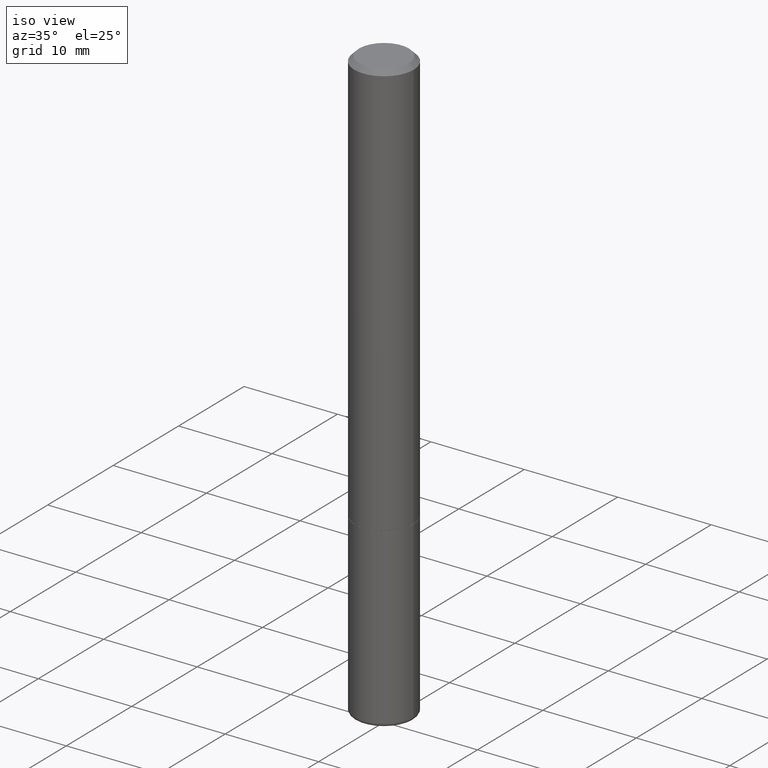
[diagram: clean part render]
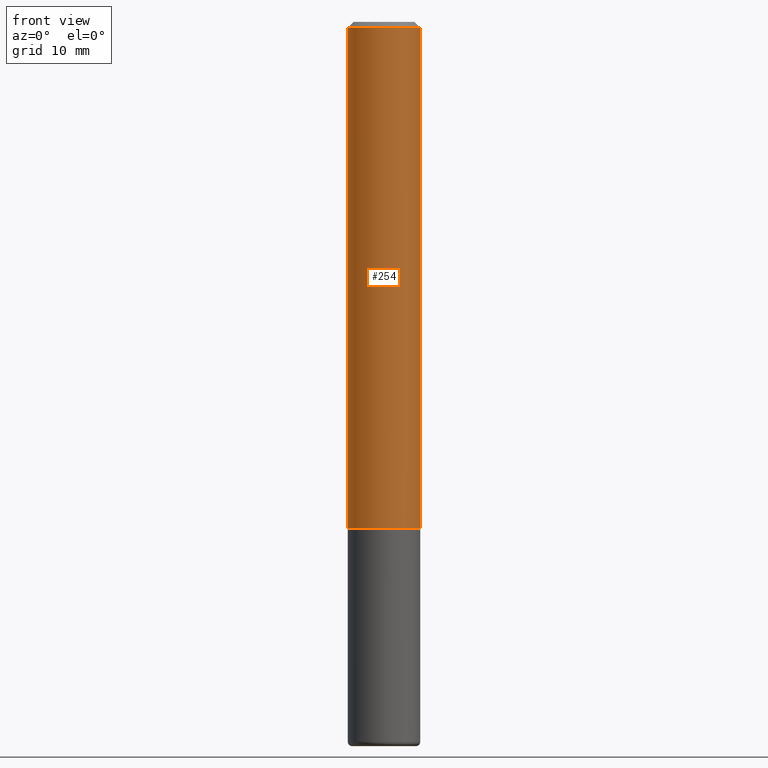
[diagram: tour spotlight — one face highlighted and labeled with its STEP entity id]
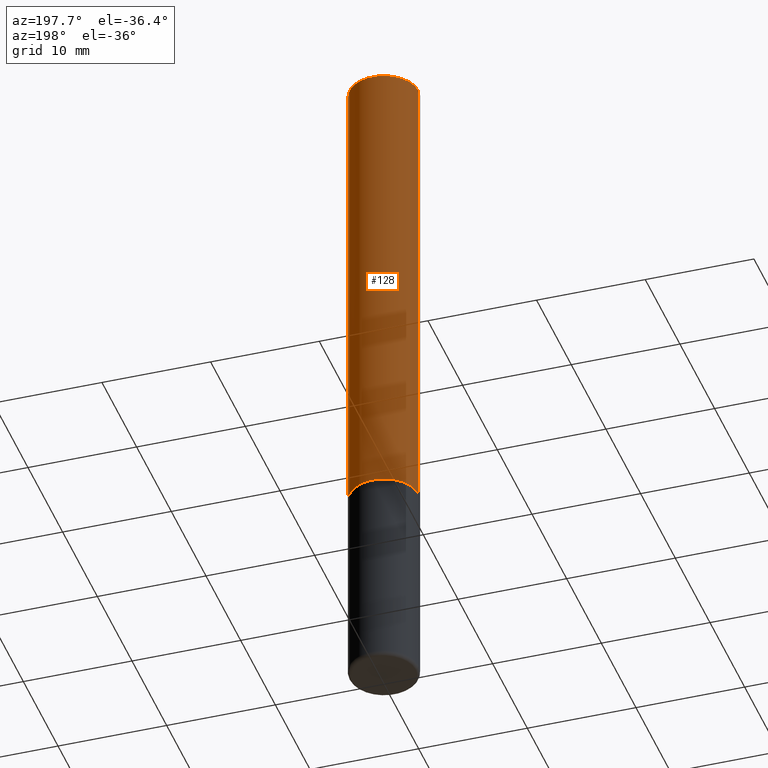
[diagram: tour spotlight — one face highlighted and labeled with its STEP entity id]
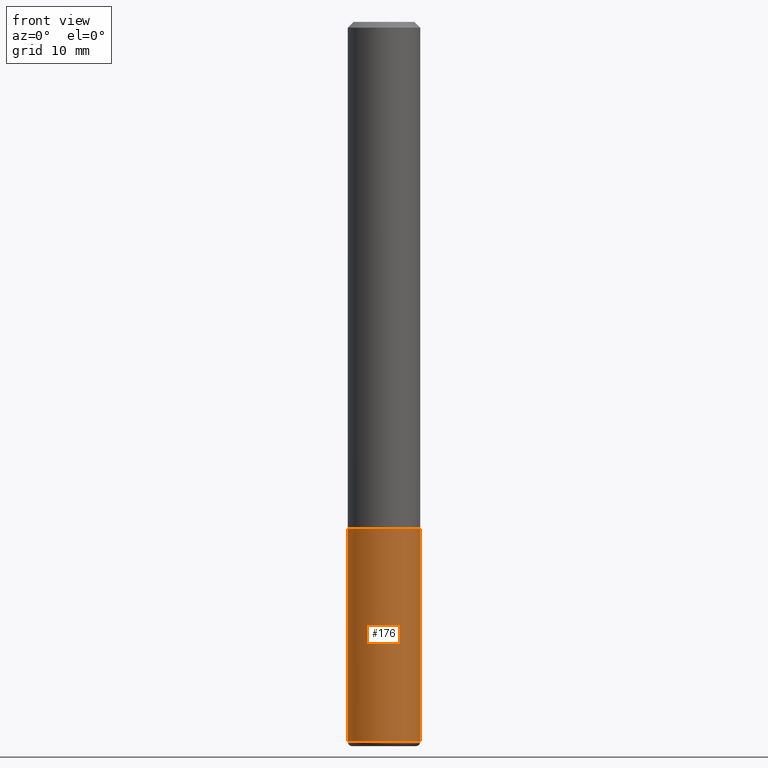
[diagram: tour spotlight — one face highlighted and labeled with its STEP entity id]
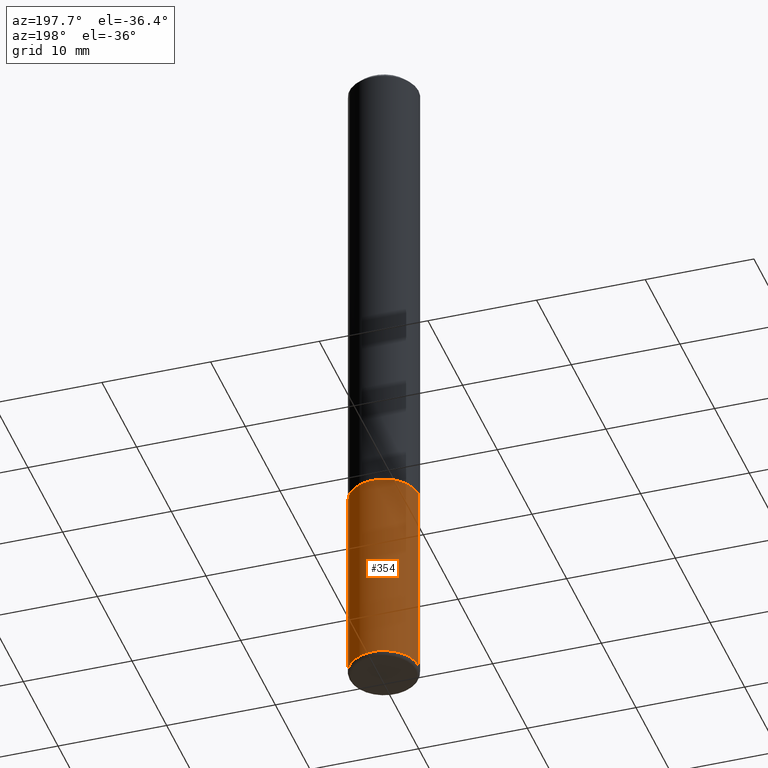
[diagram: tour spotlight — one face highlighted and labeled with its STEP entity id]
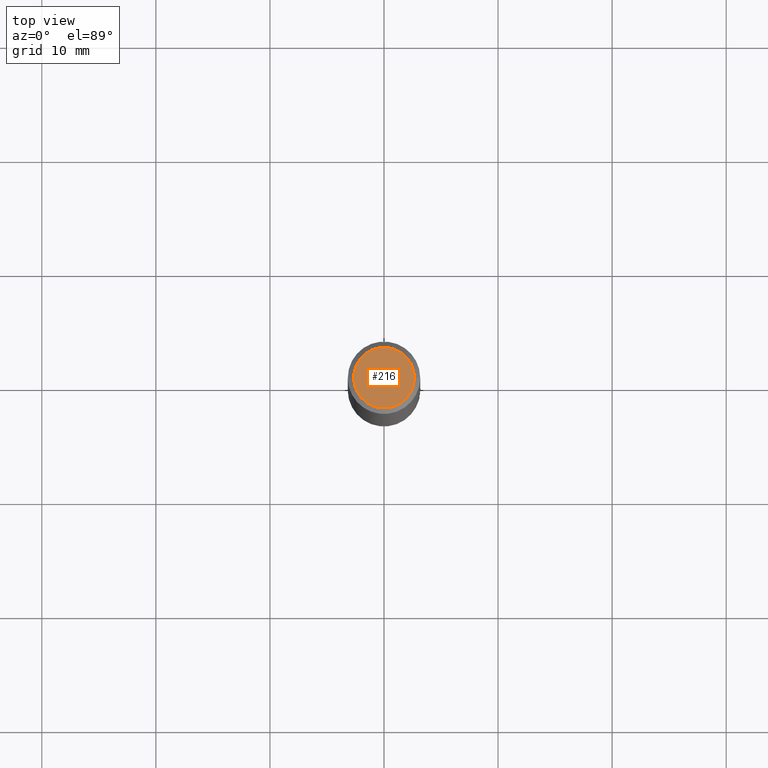
[diagram: tour spotlight — one face highlighted and labeled with its STEP entity id]
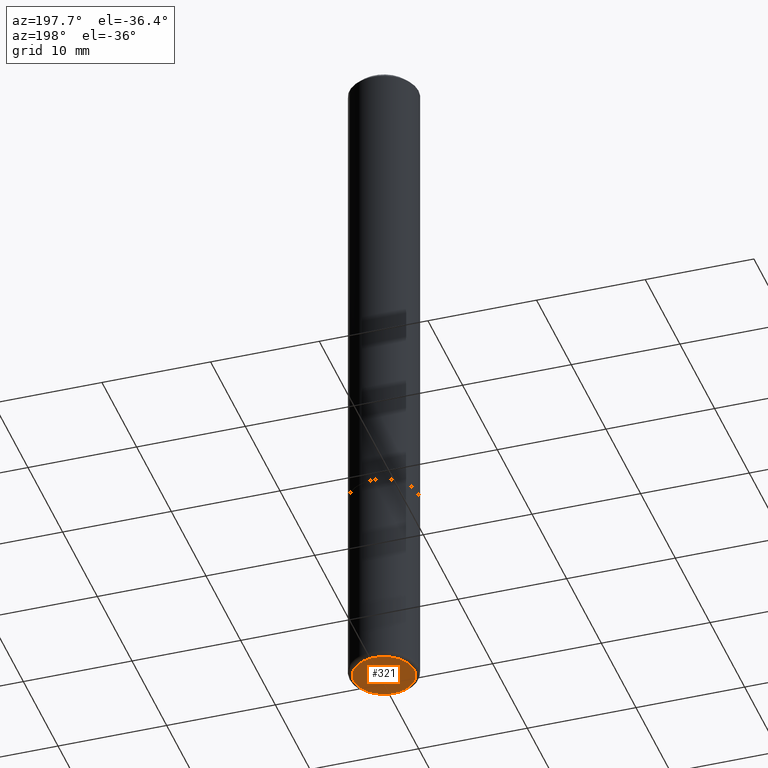
[diagram: tour spotlight — one face highlighted and labeled with its STEP entity id]
A machine part: a face-by-face anatomy tour. The part has 14 B-rep faces; the first image is the clean iso view, then the 6 largest visible faces are spotlighted one at a time (largest first), each with its STEP entity span.

Face 1 — front view, entity #254. In plain terms, the highlighted cylindrical surface (edge-blend (fillet) strip) has radius 3.175 mm, axis along (-0, 0, 1).
Definition (entity closure, byte-faithful):
#23 = VERTEX_POINT ( 'NONE', #296 ) ;
#26 = ORIENTED_EDGE ( 'NONE', *, *, #399, .F. ) ;
#41 = EDGE_CURVE ( 'NONE', #92, #195, #110, .T. ) ;
#52 = AXIS2_PLACEMENT_3D ( 'NONE', #401, #242, #312 ) ;
#62 = VERTEX_POINT ( 'NONE', #261 ) ;
#76 = CARTESIAN_POINT ( 'NONE',  ( 0.000000000000000000, 0.000000000000000000, 0.000000000000000000 ) ) ;
#81 = CARTESIAN_POINT ( 'NONE',  ( 0.1250000000000000555, -8.728703347107838319E-16, 6.095220969744923244E-30 ) ) ;
#89 = EDGE_LOOP ( 'NONE', ( #129, #107, #191, #26 ) ) ;
#92 = VERTEX_POINT ( 'NONE', #163 ) ;
#105 = CIRCLE ( 'NONE', #52, 0.1249999999999999584 ) ;
#107 = ORIENTED_EDGE ( 'NONE', *, *, #41, .T. ) ;
#110 = CIRCLE ( 'NONE', #190, 0.1250000000000001943 ) ;
#112 = CARTESIAN_POINT ( 'NONE',  ( 0.1250000000000001943, -6.979471196347446580E-15, -1.749000000000000110 ) ) ;
#114 = LINE ( 'NONE', #264, #130 ) ;
#129 = ORIENTED_EDGE ( 'NONE', *, *, #223, .F. ) ;
#130 = VECTOR ( 'NONE', #233, 39.37007874015748143 ) ;
#136 = AXIS2_PLACEMENT_3D ( 'NONE', #76, #299, #240 ) ;
#163 = CARTESIAN_POINT ( 'NONE',  ( -0.1250000000000001943, -2.200036824506633304E-15, -1.749000000000000110 ) ) ;
#168 = DIRECTION ( 'NONE',  ( 1.000000000000000000, -6.982962677686267499E-15, 0.000000000000000000 ) ) ;
#189 = EDGE_CURVE ( 'NONE', #195, #23, #397, .T. ) ;
#190 = AXIS2_PLACEMENT_3D ( 'NONE', #325, #390, #168 ) ;
#191 = ORIENTED_EDGE ( 'NONE', *, *, #189, .T. ) ;
#195 = VERTEX_POINT ( 'NONE', #112 ) ;
#223 = EDGE_CURVE ( 'NONE', #92, #62, #114, .T. ) ;
#233 = DIRECTION ( 'NONE',  ( -2.445468806185136877E-29, 3.491481338843145188E-15, 1.000000000000000000 ) ) ;
#240 = DIRECTION ( 'NONE',  ( 1.000000000000000000, -6.982962677686267499E-15, 4.876176775795936353E-29 ) ) ;
#242 = DIRECTION ( 'NONE',  ( -2.445468806185136597E-29, 3.491481338843145583E-15, 1.000000000000000000 ) ) ;
#254 = ADVANCED_FACE ( 'NONE', ( #334 ), #332, .T. ) ;
#261 = CARTESIAN_POINT ( 'NONE',  ( -0.1249999999999999584, 8.030407079339200406E-16, -0.02000000000000006287 ) ) ;
#264 = CARTESIAN_POINT ( 'NONE',  ( -0.1250000000000000555, 8.881784197001256268E-16, -6.148668862818635730E-30 ) ) ;
#296 = CARTESIAN_POINT ( 'NONE',  ( 0.1249999999999999584, -9.273918764983043491E-16, -0.02000000000000006287 ) ) ;
#299 = DIRECTION ( 'NONE',  ( -2.445468806185136597E-29, 3.491481338843145583E-15, 1.000000000000000000 ) ) ;
#312 = DIRECTION ( 'NONE',  ( 1.000000000000000000, -6.982962677686267499E-15, 0.000000000000000000 ) ) ;
#325 = CARTESIAN_POINT ( 'NONE',  ( 4.277124942017804562E-29, -6.106600861636661664E-15, -1.749000000000000110 ) ) ;
#332 = CYLINDRICAL_SURFACE ( 'NONE', #136, 0.1250000000000000555 ) ;
#334 = FACE_OUTER_BOUND ( 'NONE', #89, .T. ) ;
#370 = DIRECTION ( 'NONE',  ( -2.445468806185136877E-29, 3.491481338843145188E-15, 1.000000000000000000 ) ) ;
#390 = DIRECTION ( 'NONE',  ( -2.445468806185136597E-29, 3.491481338843145583E-15, 1.000000000000000000 ) ) ;
#391 = VECTOR ( 'NONE', #370, 39.37007874015748143 ) ;
#397 = LINE ( 'NONE', #81, #391 ) ;
#399 = EDGE_CURVE ( 'NONE', #62, #23, #105, .T. ) ;
#401 = CARTESIAN_POINT ( 'NONE',  ( 4.890937612370288923E-31, -6.982962677686312563E-17, -0.02000000000000006287 ) ) ;

Face 2 — auxiliary view, entity #128. In plain terms, the highlighted cylindrical surface (edge-blend (fillet) strip) has radius 3.175 mm, axis along (-0, 0, 1).
Definition (entity closure, byte-faithful):
#23 = VERTEX_POINT ( 'NONE', #296 ) ;
#62 = VERTEX_POINT ( 'NONE', #261 ) ;
#81 = CARTESIAN_POINT ( 'NONE',  ( 0.1250000000000000555, -8.728703347107838319E-16, 6.095220969744923244E-30 ) ) ;
#83 = EDGE_CURVE ( 'NONE', #195, #92, #88, .T. ) ;
#88 = CIRCLE ( 'NONE', #366, 0.1250000000000001943 ) ;
#92 = VERTEX_POINT ( 'NONE', #163 ) ;
#109 = DIRECTION ( 'NONE',  ( 1.000000000000000000, -6.982962677686267499E-15, 0.000000000000000000 ) ) ;
#112 = CARTESIAN_POINT ( 'NONE',  ( 0.1250000000000001943, -6.979471196347446580E-15, -1.749000000000000110 ) ) ;
#114 = LINE ( 'NONE', #264, #130 ) ;
#128 = ADVANCED_FACE ( 'NONE', ( #194 ), #320, .T. ) ;
#130 = VECTOR ( 'NONE', #233, 39.37007874015748143 ) ;
#134 = DIRECTION ( 'NONE',  ( -2.445468806185136597E-29, 3.491481338843145583E-15, 1.000000000000000000 ) ) ;
#141 = AXIS2_PLACEMENT_3D ( 'NONE', #235, #364, #109 ) ;
#163 = CARTESIAN_POINT ( 'NONE',  ( -0.1250000000000001943, -2.200036824506633304E-15, -1.749000000000000110 ) ) ;
#167 = CARTESIAN_POINT ( 'NONE',  ( 0.000000000000000000, 0.000000000000000000, 0.000000000000000000 ) ) ;
#189 = EDGE_CURVE ( 'NONE', #195, #23, #397, .T. ) ;
#193 = CARTESIAN_POINT ( 'NONE',  ( 4.277124942017804562E-29, -6.106600861636661664E-15, -1.749000000000000110 ) ) ;
#194 = FACE_OUTER_BOUND ( 'NONE', #307, .T. ) ;
#195 = VERTEX_POINT ( 'NONE', #112 ) ;
#210 = ORIENTED_EDGE ( 'NONE', *, *, #83, .T. ) ;
#211 = CIRCLE ( 'NONE', #141, 0.1249999999999999584 ) ;
#221 = DIRECTION ( 'NONE',  ( 1.000000000000000000, -6.982962677686267499E-15, 0.000000000000000000 ) ) ;
#223 = EDGE_CURVE ( 'NONE', #92, #62, #114, .T. ) ;
#232 = ORIENTED_EDGE ( 'NONE', *, *, #238, .F. ) ;
#233 = DIRECTION ( 'NONE',  ( -2.445468806185136877E-29, 3.491481338843145188E-15, 1.000000000000000000 ) ) ;
#235 = CARTESIAN_POINT ( 'NONE',  ( 4.890937612370288923E-31, -6.982962677686312563E-17, -0.02000000000000006287 ) ) ;
#238 = EDGE_CURVE ( 'NONE', #23, #62, #211, .T. ) ;
#248 = ORIENTED_EDGE ( 'NONE', *, *, #189, .F. ) ;
#260 = DIRECTION ( 'NONE',  ( 1.000000000000000000, -6.982962677686267499E-15, 4.876176775795936353E-29 ) ) ;
#261 = CARTESIAN_POINT ( 'NONE',  ( -0.1249999999999999584, 8.030407079339200406E-16, -0.02000000000000006287 ) ) ;
#264 = CARTESIAN_POINT ( 'NONE',  ( -0.1250000000000000555, 8.881784197001256268E-16, -6.148668862818635730E-30 ) ) ;
#278 = AXIS2_PLACEMENT_3D ( 'NONE', #167, #134, #260 ) ;
#296 = CARTESIAN_POINT ( 'NONE',  ( 0.1249999999999999584, -9.273918764983043491E-16, -0.02000000000000006287 ) ) ;
#307 = EDGE_LOOP ( 'NONE', ( #210, #380, #232, #248 ) ) ;
#320 = CYLINDRICAL_SURFACE ( 'NONE', #278, 0.1250000000000000555 ) ;
#322 = DIRECTION ( 'NONE',  ( -2.445468806185136597E-29, 3.491481338843145583E-15, 1.000000000000000000 ) ) ;
#364 = DIRECTION ( 'NONE',  ( -2.445468806185136597E-29, 3.491481338843145583E-15, 1.000000000000000000 ) ) ;
#366 = AXIS2_PLACEMENT_3D ( 'NONE', #193, #322, #221 ) ;
#370 = DIRECTION ( 'NONE',  ( -2.445468806185136877E-29, 3.491481338843145188E-15, 1.000000000000000000 ) ) ;
#380 = ORIENTED_EDGE ( 'NONE', *, *, #223, .T. ) ;
#391 = VECTOR ( 'NONE', #370, 39.37007874015748143 ) ;
#397 = LINE ( 'NONE', #81, #391 ) ;

Face 3 — front view, entity #176. In plain terms, the highlighted cylindrical surface (edge-blend (fillet) strip) has radius 3.175 mm, axis along (-0, 0, 1).
Definition (entity closure, byte-faithful):
#11 = EDGE_CURVE ( 'NONE', #213, #51, #28, .T. ) ;
#14 = DIRECTION ( 'NONE',  ( 1.000000000000000000, -6.982962677686266711E-15, 4.876176775795935793E-29 ) ) ;
#15 = DIRECTION ( 'NONE',  ( 1.000000000000000000, -6.982962677686270655E-15, 0.000000000000000000 ) ) ;
#28 = LINE ( 'NONE', #137, #206 ) ;
#44 = DIRECTION ( 'NONE',  ( -2.445468806185136597E-29, 3.491481338843145583E-15, 1.000000000000000000 ) ) ;
#45 = CARTESIAN_POINT ( 'NONE',  ( 4.279570410823989044E-29, -6.110092342975505460E-15, -1.750000000000000222 ) ) ;
#50 = CIRCLE ( 'NONE', #301, 0.1250000000000000000 ) ;
#51 = VERTEX_POINT ( 'NONE', #387 ) ;
#57 = VERTEX_POINT ( 'NONE', #135 ) ;
#70 = ORIENTED_EDGE ( 'NONE', *, *, #204, .T. ) ;
#74 = DIRECTION ( 'NONE',  ( 1.000000000000000000, -6.982962677686262766E-15, 0.000000000000000000 ) ) ;
#97 = AXIS2_PLACEMENT_3D ( 'NONE', #300, #44, #14 ) ;
#108 = DIRECTION ( 'NONE',  ( -2.445468806185136597E-29, 3.491481338843145583E-15, 1.000000000000000000 ) ) ;
#118 = EDGE_LOOP ( 'NONE', ( #127, #70, #208, #309 ) ) ;
#121 = CARTESIAN_POINT ( 'NONE',  ( -0.1250000000000000555, -7.788152707325091448E-15, -2.484999999999999876 ) ) ;
#127 = ORIENTED_EDGE ( 'NONE', *, *, #359, .F. ) ;
#135 = CARTESIAN_POINT ( 'NONE',  ( -0.1250000000000000000, -6.505033315300235838E-15, -1.750000000000000222 ) ) ;
#137 = CARTESIAN_POINT ( 'NONE',  ( 0.1250000000000000000, -8.728703347107833388E-16, 6.095220969744919741E-30 ) ) ;
#140 = CARTESIAN_POINT ( 'NONE',  ( 0.1250000000000000555, -9.549201461736000019E-15, -2.484999999999999876 ) ) ;
#176 = ADVANCED_FACE ( 'NONE', ( #335 ), #340, .T. ) ;
#178 = DIRECTION ( 'NONE',  ( -2.445468806185136597E-29, 3.491481338843145583E-15, 1.000000000000000000 ) ) ;
#182 = LINE ( 'NONE', #243, #402 ) ;
#200 = CIRCLE ( 'NONE', #255, 0.1250000000000000000 ) ;
#204 = EDGE_CURVE ( 'NONE', #343, #213, #200, .T. ) ;
#206 = VECTOR ( 'NONE', #415, 39.37007874015748143 ) ;
#208 = ORIENTED_EDGE ( 'NONE', *, *, #11, .T. ) ;
#213 = VERTEX_POINT ( 'NONE', #140 ) ;
#243 = CARTESIAN_POINT ( 'NONE',  ( -0.1250000000000000000, 8.881784197001252323E-16, -6.148668862818632227E-30 ) ) ;
#255 = AXIS2_PLACEMENT_3D ( 'NONE', #297, #178, #15 ) ;
#272 = DIRECTION ( 'NONE',  ( -2.445468806185136877E-29, 3.491481338843145188E-15, 1.000000000000000000 ) ) ;
#276 = EDGE_CURVE ( 'NONE', #57, #51, #50, .T. ) ;
#297 = CARTESIAN_POINT ( 'NONE',  ( 6.076989983370064174E-29, -8.676331127025216680E-15, -2.484999999999999876 ) ) ;
#300 = CARTESIAN_POINT ( 'NONE',  ( 0.000000000000000000, 0.000000000000000000, 0.000000000000000000 ) ) ;
#301 = AXIS2_PLACEMENT_3D ( 'NONE', #45, #108, #74 ) ;
#309 = ORIENTED_EDGE ( 'NONE', *, *, #276, .F. ) ;
#335 = FACE_OUTER_BOUND ( 'NONE', #118, .T. ) ;
#340 = CYLINDRICAL_SURFACE ( 'NONE', #97, 0.1250000000000000000 ) ;
#343 = VERTEX_POINT ( 'NONE', #121 ) ;
#359 = EDGE_CURVE ( 'NONE', #343, #57, #182, .T. ) ;
#387 = CARTESIAN_POINT ( 'NONE',  ( 0.1250000000000000000, -6.982962677686288010E-15, -1.750000000000000222 ) ) ;
#402 = VECTOR ( 'NONE', #272, 39.37007874015748143 ) ;
#415 = DIRECTION ( 'NONE',  ( -2.445468806185136877E-29, 3.491481338843145188E-15, 1.000000000000000000 ) ) ;

Face 4 — auxiliary view, entity #354. In plain terms, the highlighted cylindrical surface (edge-blend (fillet) strip) has radius 3.175 mm, axis along (-0, 0, 1).
Definition (entity closure, byte-faithful):
#11 = EDGE_CURVE ( 'NONE', #213, #51, #28, .T. ) ;
#17 = EDGE_CURVE ( 'NONE', #51, #57, #236, .T. ) ;
#24 = AXIS2_PLACEMENT_3D ( 'NONE', #35, #293, #66 ) ;
#28 = LINE ( 'NONE', #137, #206 ) ;
#35 = CARTESIAN_POINT ( 'NONE',  ( 4.279570410823989044E-29, -6.110092342975505460E-15, -1.750000000000000222 ) ) ;
#51 = VERTEX_POINT ( 'NONE', #387 ) ;
#57 = VERTEX_POINT ( 'NONE', #135 ) ;
#66 = DIRECTION ( 'NONE',  ( 1.000000000000000000, -6.982962677686262766E-15, 0.000000000000000000 ) ) ;
#68 = CIRCLE ( 'NONE', #373, 0.1250000000000000000 ) ;
#121 = CARTESIAN_POINT ( 'NONE',  ( -0.1250000000000000555, -7.788152707325091448E-15, -2.484999999999999876 ) ) ;
#135 = CARTESIAN_POINT ( 'NONE',  ( -0.1250000000000000000, -6.505033315300235838E-15, -1.750000000000000222 ) ) ;
#137 = CARTESIAN_POINT ( 'NONE',  ( 0.1250000000000000000, -8.728703347107833388E-16, 6.095220969744919741E-30 ) ) ;
#140 = CARTESIAN_POINT ( 'NONE',  ( 0.1250000000000000555, -9.549201461736000019E-15, -2.484999999999999876 ) ) ;
#144 = DIRECTION ( 'NONE',  ( 1.000000000000000000, -6.982962677686266711E-15, 4.876176775795935793E-29 ) ) ;
#177 = DIRECTION ( 'NONE',  ( -2.445468806185136597E-29, 3.491481338843145583E-15, 1.000000000000000000 ) ) ;
#179 = EDGE_LOOP ( 'NONE', ( #244, #280, #348, #406 ) ) ;
#182 = LINE ( 'NONE', #243, #402 ) ;
#205 = CARTESIAN_POINT ( 'NONE',  ( 6.076989983370064174E-29, -8.676331127025216680E-15, -2.484999999999999876 ) ) ;
#206 = VECTOR ( 'NONE', #415, 39.37007874015748143 ) ;
#213 = VERTEX_POINT ( 'NONE', #140 ) ;
#236 = CIRCLE ( 'NONE', #24, 0.1250000000000000000 ) ;
#243 = CARTESIAN_POINT ( 'NONE',  ( -0.1250000000000000000, 8.881784197001252323E-16, -6.148668862818632227E-30 ) ) ;
#244 = ORIENTED_EDGE ( 'NONE', *, *, #298, .T. ) ;
#270 = AXIS2_PLACEMENT_3D ( 'NONE', #375, #342, #144 ) ;
#272 = DIRECTION ( 'NONE',  ( -2.445468806185136877E-29, 3.491481338843145188E-15, 1.000000000000000000 ) ) ;
#280 = ORIENTED_EDGE ( 'NONE', *, *, #359, .T. ) ;
#293 = DIRECTION ( 'NONE',  ( -2.445468806185136597E-29, 3.491481338843145583E-15, 1.000000000000000000 ) ) ;
#298 = EDGE_CURVE ( 'NONE', #213, #343, #68, .T. ) ;
#303 = DIRECTION ( 'NONE',  ( 1.000000000000000000, -6.982962677686270655E-15, 0.000000000000000000 ) ) ;
#342 = DIRECTION ( 'NONE',  ( -2.445468806185136597E-29, 3.491481338843145583E-15, 1.000000000000000000 ) ) ;
#343 = VERTEX_POINT ( 'NONE', #121 ) ;
#347 = CYLINDRICAL_SURFACE ( 'NONE', #270, 0.1250000000000000000 ) ;
#348 = ORIENTED_EDGE ( 'NONE', *, *, #17, .F. ) ;
#354 = ADVANCED_FACE ( 'NONE', ( #377 ), #347, .T. ) ;
#359 = EDGE_CURVE ( 'NONE', #343, #57, #182, .T. ) ;
#373 = AXIS2_PLACEMENT_3D ( 'NONE', #205, #177, #303 ) ;
#375 = CARTESIAN_POINT ( 'NONE',  ( 0.000000000000000000, 0.000000000000000000, 0.000000000000000000 ) ) ;
#377 = FACE_OUTER_BOUND ( 'NONE', #179, .T. ) ;
#387 = CARTESIAN_POINT ( 'NONE',  ( 0.1250000000000000000, -6.982962677686288010E-15, -1.750000000000000222 ) ) ;
#402 = VECTOR ( 'NONE', #272, 39.37007874015748143 ) ;
#406 = ORIENTED_EDGE ( 'NONE', *, *, #11, .F. ) ;
#415 = DIRECTION ( 'NONE',  ( -2.445468806185136877E-29, 3.491481338843145188E-15, 1.000000000000000000 ) ) ;

Face 5 — top view, entity #216. In plain terms, the highlighted planar face has unit normal (0, -0, -1).
Definition (entity closure, byte-faithful):
#22 = EDGE_CURVE ( 'NONE', #123, #412, #267, .T. ) ;
#30 = DIRECTION ( 'NONE',  ( -2.445468806185136597E-29, 3.491481338843145583E-15, 1.000000000000000000 ) ) ;
#71 = EDGE_CURVE ( 'NONE', #412, #123, #104, .T. ) ;
#75 = AXIS2_PLACEMENT_3D ( 'NONE', #385, #30, #258 ) ;
#84 = ORIENTED_EDGE ( 'NONE', *, *, #71, .T. ) ;
#86 = ORIENTED_EDGE ( 'NONE', *, *, #22, .T. ) ;
#99 = DIRECTION ( 'NONE',  ( -2.445468806185136597E-29, 3.491481338843145583E-15, 1.000000000000000000 ) ) ;
#104 = CIRCLE ( 'NONE', #75, 0.1050000000000000377 ) ;
#123 = VERTEX_POINT ( 'NONE', #358 ) ;
#142 = FACE_OUTER_BOUND ( 'NONE', #253, .T. ) ;
#207 = CARTESIAN_POINT ( 'NONE',  ( 7.332110811570581229E-16, 0.1050000000000000377, -3.922166155191328542E-16 ) ) ;
#216 = ADVANCED_FACE ( 'NONE', ( #142 ), #395, .F. ) ;
#219 = AXIS2_PLACEMENT_3D ( 'NONE', #207, #304, #265 ) ;
#250 = CARTESIAN_POINT ( 'NONE',  ( 0.1050000000000000377, -8.238720831321576644E-16, -5.122214988119949344E-17 ) ) ;
#253 = EDGE_LOOP ( 'NONE', ( #86, #84 ) ) ;
#256 = CARTESIAN_POINT ( 'NONE',  ( 1.252621697202263706E-45, -1.788411804456536750E-31, -5.122214988120493535E-17 ) ) ;
#258 = DIRECTION ( 'NONE',  ( 1.000000000000000000, -6.982962677686267499E-15, 4.874400871621236533E-29 ) ) ;
#265 = DIRECTION ( 'NONE',  ( -1.000000000000000000, 6.982962677686265922E-15, -4.876176775795935793E-29 ) ) ;
#267 = CIRCLE ( 'NONE', #331, 0.1050000000000000377 ) ;
#304 = DIRECTION ( 'NONE',  ( 2.438088387897960049E-29, -3.491481338843145188E-15, -1.000000000000000000 ) ) ;
#330 = DIRECTION ( 'NONE',  ( 1.000000000000000000, -6.982962677686267499E-15, 4.874400871621236533E-29 ) ) ;
#331 = AXIS2_PLACEMENT_3D ( 'NONE', #256, #99, #330 ) ;
#358 = CARTESIAN_POINT ( 'NONE',  ( -0.1050000000000000377, 7.681258945454890818E-16, -5.122214988121018004E-17 ) ) ;
#385 = CARTESIAN_POINT ( 'NONE',  ( 1.252621697202263706E-45, -1.788411804456536750E-31, -5.122214988120493535E-17 ) ) ;
#395 = PLANE ( 'NONE',  #219 ) ;
#412 = VERTEX_POINT ( 'NONE', #250 ) ;

Face 6 — auxiliary view, entity #321. In plain terms, the highlighted planar face has unit normal (0, -0, -1).
Definition (entity closure, byte-faithful):
#5 = AXIS2_PLACEMENT_3D ( 'NONE', #398, #79, #337 ) ;
#10 = CARTESIAN_POINT ( 'NONE',  ( 6.113672015462842613E-29, -8.728703347107864943E-15, -2.500000000000000000 ) ) ;
#40 = FACE_OUTER_BOUND ( 'NONE', #184, .T. ) ;
#79 = DIRECTION ( 'NONE',  ( -2.445468806185136597E-29, 3.491481338843145583E-15, 1.000000000000000000 ) ) ;
#80 = CIRCLE ( 'NONE', #5, 0.1100000000000000006 ) ;
#93 = DIRECTION ( 'NONE',  ( -2.445468806185136597E-29, 3.491481338843145583E-15, 1.000000000000000000 ) ) ;
#117 = CARTESIAN_POINT ( 'NONE',  ( 6.113672015462842613E-29, -8.728703347107864943E-15, -2.500000000000000000 ) ) ;
#122 = CIRCLE ( 'NONE', #295, 0.1100000000000000006 ) ;
#169 = VERTEX_POINT ( 'NONE', #237 ) ;
#184 = EDGE_LOOP ( 'NONE', ( #319, #382 ) ) ;
#202 = DIRECTION ( 'NONE',  ( 2.438088387897960049E-29, -3.491481338843145188E-15, -1.000000000000000000 ) ) ;
#209 = DIRECTION ( 'NONE',  ( 1.000000000000000000, -6.982962677686270655E-15, 0.000000000000000000 ) ) ;
#212 = CARTESIAN_POINT ( 'NONE',  ( -0.1100000000000000006, -7.867629522548422746E-15, -2.500000000000000000 ) ) ;
#237 = CARTESIAN_POINT ( 'NONE',  ( 0.1100000000000000006, -9.496829241653354912E-15, -2.500000000000000000 ) ) ;
#269 = PLANE ( 'NONE',  #345 ) ;
#292 = EDGE_CURVE ( 'NONE', #376, #169, #80, .T. ) ;
#295 = AXIS2_PLACEMENT_3D ( 'NONE', #117, #93, #209 ) ;
#319 = ORIENTED_EDGE ( 'NONE', *, *, #344, .F. ) ;
#321 = ADVANCED_FACE ( 'NONE', ( #40 ), #269, .T. ) ;
#337 = DIRECTION ( 'NONE',  ( 1.000000000000000000, -6.982962677686270655E-15, 0.000000000000000000 ) ) ;
#344 = EDGE_CURVE ( 'NONE', #169, #376, #122, .T. ) ;
#345 = AXIS2_PLACEMENT_3D ( 'NONE', #10, #202, #400 ) ;
#376 = VERTEX_POINT ( 'NONE', #212 ) ;
#382 = ORIENTED_EDGE ( 'NONE', *, *, #292, .F. ) ;
#398 = CARTESIAN_POINT ( 'NONE',  ( 6.113672015462842613E-29, -8.728703347107864943E-15, -2.500000000000000000 ) ) ;
#400 = DIRECTION ( 'NONE',  ( -1.000000000000000000, 6.982962677686265922E-15, -4.876176775795935793E-29 ) ) ;